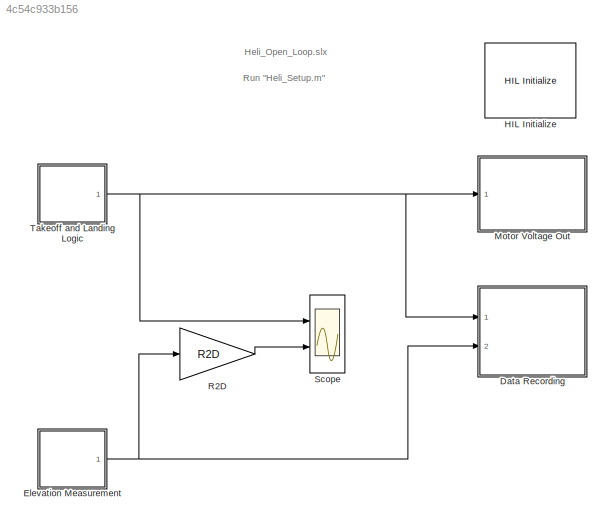
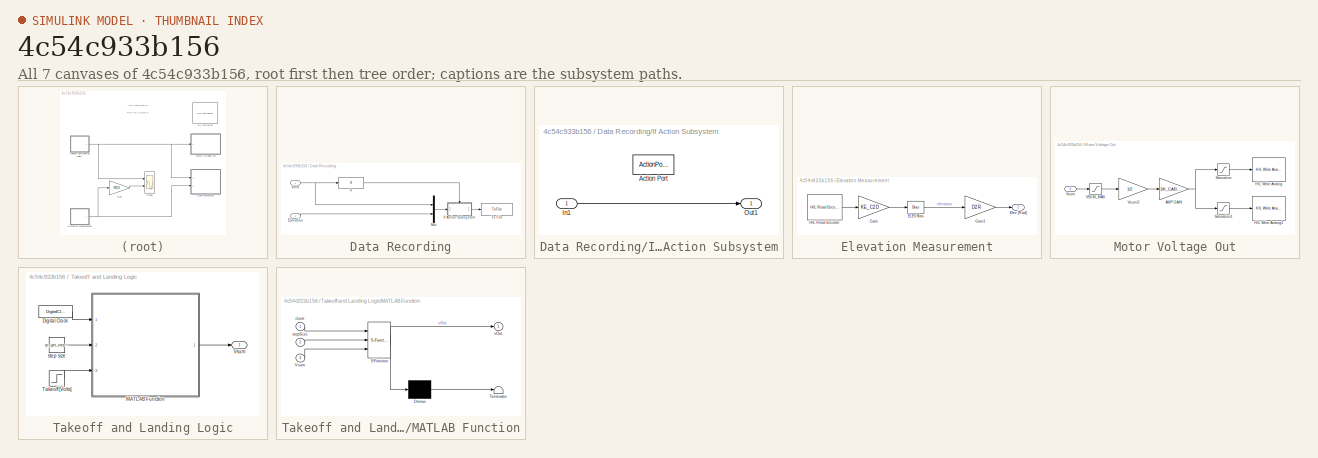
[diagram: thumbnail index - all 7 canvases of the model, root first then tree order]
MODEL slx_4c54c933b156
KIND model
CONFIG AbsTol = auto
CONFIG FixedStep = 0.01
CONFIG MaxStep = auto
CONFIG MinStep = auto
CONFIG RelTol = 1e-3
CONFIG SampleTimeConstraint = Unconstrained
CONFIG Solver = FixedStepDiscrete
CONFIG SolverMode = Auto
CONFIG SolverName = FixedStepDiscrete
CONFIG StartTime = 0.0
CONFIG StopTime = 40
BLOCK [SubSystem] Data Recording
  Ports = [2]
  RequestExecContextInheritance = off
  Variant = off
BLOCK [Inport] Data Recording/Elevation
  IconDisplay = Port number
  Port = 2
BLOCK [If] Data Recording/If
  IfExpression = u1 == Vsum
  Ports = [1, 1]
  ShowElse = off
BLOCK [SubSystem] Data Recording/If Action Subsystem
  Ports = [1, 1, 0, 0, 0, 0, 0, 1]
  RequestExecContextInheritance = off
  TreatAsAtomicUnit = on
  Variant = off
BLOCK [ActionPort] Data Recording/If Action Subsystem/Action Port
  ActionType = then
  InitializeStates = reset
BLOCK [Inport] Data Recording/If Action Subsystem/In1
  IconDisplay = Port number
BLOCK [Outport] Data Recording/If Action Subsystem/Out1
  IconDisplay = Port number
BLOCK [Mux] Data Recording/Mux
  DisplayOption = bar
  Inputs = 2
  Ports = [2, 1]
BLOCK [ToFile] Data Recording/To File
  Filename = elevationData3
  MatrixName = elev3
  Ports = [1]
BLOCK [Inport] Data Recording/Volts
  IconDisplay = Port number
BLOCK [SubSystem] Elevation Measurement
  Ports = [0, 1]
  RequestExecContextInheritance = off
  Variant = off
BLOCK [Bias] Elevation Measurement/ELEV Bias
  SaturateOnIntegerOverflow = off
BLOCK [Outport] Elevation Measurement/Elev [Rad]
  IconDisplay = Port number
BLOCK [Gain] Elevation Measurement/Gain
  Gain = KE_C2D
  OutDataTypeStr = Inherit: Inherit via internal rule
  ParamDataTypeStr = Inherit: Inherit via internal rule
  SaturateOnIntegerOverflow = off
BLOCK [Gain] Elevation Measurement/Gain1
  Gain = D2R
  OutDataTypeStr = Inherit: Inherit via internal rule
  ParamDataTypeStr = Inherit: Inherit via internal rule
  SaturateOnIntegerOverflow = off
BLOCK [Reference] Elevation Measurement/HIL Read Encoder  REF=quarc_library/Data Acquisition/Generic/Immediate I//O/HIL Read Encoder
  AttributesFormatString = (%<object_name>)
  Ports = [0, 1]
  SourceBlock = quarc_library/Data Acquisition/Generic/Immediate I//O/HIL Read Encoder
  SourceType = HIL Read Encoder
  UserDataPersistent = on
BLOCK [Reference] HIL Initialize  REF=quarc_library/Data Acquisition/Generic/Configuration/HIL Initialize
  AttributesFormatString = %<object_name> (%<board_type>-%<board_number>)
  Ports = []
  Priority = -99
  SourceBlock = quarc_library/Data Acquisition/Generic/Configuration/HIL Initialize
  SourceType = HIL Initialize
  UserDataPersistent = on
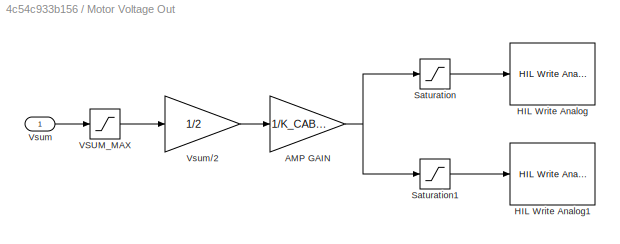
BLOCK [SubSystem] Motor Voltage Out
  Ports = [1]
  RequestExecContextInheritance = off
  Variant = off
BLOCK [Gain] Motor Voltage Out/AMP GAIN
  Gain = 1/K_CABLE
  OutDataTypeStr = Inherit: Inherit via internal rule
  ParamDataTypeStr = Inherit: Inherit via internal rule
  SaturateOnIntegerOverflow = off
BLOCK [Reference] Motor Voltage Out/HIL Write Analog  REF=quarc_library/Data Acquisition/Generic/Immediate I//O/HIL Write Analog
  AttributesFormatString = (%<object_name>)
  Ports = [1]
  SourceBlock = quarc_library/Data Acquisition/Generic/Immediate I//O/HIL Write Analog
  SourceType = HIL Write Analog
  UserDataPersistent = on
BLOCK [Reference] Motor Voltage Out/HIL Write Analog1  REF=quarc_library/Data Acquisition/Generic/Immediate I//O/HIL Write Analog
  AttributesFormatString = (%<object_name>)
  Ports = [1]
  SourceBlock = quarc_library/Data Acquisition/Generic/Immediate I//O/HIL Write Analog
  SourceType = HIL Write Analog
  UserDataPersistent = on
BLOCK [Saturate] Motor Voltage Out/Saturation
  InputPortMap = u0
  LowerLimit = -K_DAQ
  Ports = [1, 1]
  UpperLimit = K_DAQ
BLOCK [Saturate] Motor Voltage Out/Saturation1
  InputPortMap = u0
  LowerLimit = -10
  Ports = [1, 1]
  UpperLimit = 10
BLOCK [Saturate] Motor Voltage Out/VSUM_MAX
  InputPortMap = u0
  LowerLimit = 0
  Ports = [1, 1]
  UpperLimit = VSUM_MAX
BLOCK [Inport] Motor Voltage Out/Vsum
  IconDisplay = Port number
BLOCK [Gain] Motor Voltage Out/Vsum//2
  Gain = 1/2
  OutDataTypeStr = Inherit: Inherit via internal rule
  ParamDataTypeStr = Inherit: Inherit via internal rule
  SaturateOnIntegerOverflow = off
BLOCK [Gain] R2D
  Gain = R2D
  OutDataTypeStr = Inherit: Inherit via internal rule
  ParamDataTypeStr = Inherit: Inherit via internal rule
  SaturateOnIntegerOverflow = off
BLOCK [Scope] Scope
  NumInputPorts = 2
  Ports = [2]
  ScopeSpecificationString = Simulink.scopes.TimeScopeBlockCfg('CurrentConfiguration', extmgr.ConfigurationSet(extmgr.Configuration('Core','General UI',true),extmgr.Configuration('Core','Source UI',true),extmgr.Configuration('Sources','WiredSimulink',true,'DataLoggingVariableName','ScopeData1','DataLoggingSaveFormat','StructureWithTime','DataLoggingDecimation','1','DataLoggingDecimateData',true),extmgr.Configuration('Visuals'...<+2360ch>
BLOCK [SubSystem] Takeoff and Landing Logic
  Ports = [0, 1]
  RequestExecContextInheritance = off
  Variant = off
BLOCK [DigitalClock] Takeoff and Landing Logic/Digital Clock
  SampleTime = qc_get_step_size
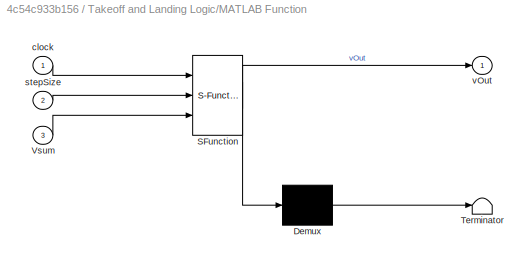
BLOCK [SubSystem] Takeoff and Landing Logic/MATLAB Function
  ErrorFcn = Stateflow.Translate.translate
  PermitHierarchicalResolution = ExplicitOnly
  Ports = [3, 1]
  RequestExecContextInheritance = off
  SFBlockType = MATLAB Function
  TreatAsAtomicUnit = on
  Variant = off
BLOCK [Demux] Takeoff and Landing Logic/MATLAB Function/ Demux 
  Outputs = 1
  Ports = [1, 1]
BLOCK [S-Function] Takeoff and Landing Logic/MATLAB Function/ SFunction 
  EnableBusSupport = on
  FunctionName = sf_sfun
  PortCounts = [3 2]
  Ports = [3, 2]
  SFunctionDeploymentMode = off
  Tag = Stateflow S-Function Heli_Open_Loop 2
BLOCK [Terminator] Takeoff and Landing Logic/MATLAB Function/ Terminator 
BLOCK [Inport] Takeoff and Landing Logic/MATLAB Function/Vsum
  IconDisplay = Port number
  Port = 3
BLOCK [Inport] Takeoff and Landing Logic/MATLAB Function/clock
  IconDisplay = Port number
BLOCK [Inport] Takeoff and Landing Logic/MATLAB Function/stepSize
  IconDisplay = Port number
  Port = 2
BLOCK [Outport] Takeoff and Landing Logic/MATLAB Function/vOut
  IconDisplay = Port number
BLOCK [Step] Takeoff and Landing Logic/Takeoff [Volts]
  After = Vsum
  SampleTime = 0
BLOCK [Outport] Takeoff and Landing Logic/Vsum
  IconDisplay = Port number
BLOCK [Constant] Takeoff and Landing Logic/step size
  Value = qc_get_step_size
ANNOTATION (root): Heli_Open_Loop.slx
ANNOTATION (root): Run "Heli_Setup.m"
LINE Data Recording/Elevation:1 -> Data Recording/Mux:2
LINE Data Recording/If Action Subsystem/In1:1 -> Data Recording/If Action Subsystem/Out1:1
LINE Data Recording/If Action Subsystem:1 -> Data Recording/To File:1
LINE Data Recording/If:1 -> Data Recording/If Action Subsystem:ifaction
LINE Data Recording/Mux:1 -> Data Recording/If Action Subsystem:1
NET Data Recording/Volts:1 -> Data Recording/If:1, Data Recording/Mux:1
LINE Elevation Measurement/ELEV Bias:1 -> Elevation Measurement/Gain1:1
LINE Elevation Measurement/Gain1:1 -> Elevation Measurement/Elev [Rad]:1
LINE Elevation Measurement/Gain:1 -> Elevation Measurement/ELEV Bias:1
LINE Elevation Measurement/HIL Read Encoder:1 -> Elevation Measurement/Gain:1
NET Elevation Measurement:1 -> Data Recording:2, R2D:1
NET Motor Voltage Out/AMP GAIN:1 -> Motor Voltage Out/Saturation1:1, Motor Voltage Out/Saturation:1
LINE Motor Voltage Out/Saturation1:1 -> Motor Voltage Out/HIL Write Analog1:1
LINE Motor Voltage Out/Saturation:1 -> Motor Voltage Out/HIL Write Analog:1
LINE Motor Voltage Out/VSUM_MAX:1 -> Motor Voltage Out/Vsum//2:1
LINE Motor Voltage Out/Vsum//2:1 -> Motor Voltage Out/AMP GAIN:1
LINE Motor Voltage Out/Vsum:1 -> Motor Voltage Out/VSUM_MAX:1
LINE R2D:1 -> Scope:2
LINE Takeoff and Landing Logic/Digital Clock:1 -> Takeoff and Landing Logic/MATLAB Function:1
LINE Takeoff and Landing Logic/MATLAB Function:1 -> Takeoff and Landing Logic/Vsum:1
LINE Takeoff and Landing Logic/Takeoff [Volts]:1 -> Takeoff and Landing Logic/MATLAB Function:3
LINE Takeoff and Landing Logic/step size:1 -> Takeoff and Landing Logic/MATLAB Function:2
NET Takeoff and Landing Logic:1 -> Data Recording:1, Motor Voltage Out:1, Scope:1
note: NET lines group one-source signal fan-out (src -> all destinations, sorted); 1:1 wires keep LINE
CHART Takeoff and
Landing Logic/MATLAB Function states=1 transitions=1
  STATE_LABEL 'eML_blk_kernel()'
  STATE_LABEL 'SCRIPT:\nfunction vOut = fcn(clock,stepSize,Vsum)\n%#codegen\n\npersistent vSumOut;\nif isempty(vSumOut)\n    vSumOut = 0;\nend    \n\nif(clock < 25)\n    vSumOut = Vsum;\nelse\n    vSumOut = vSumOut - Vsum/clock*stepSize;\nend\nvOut = vSumOut;'
